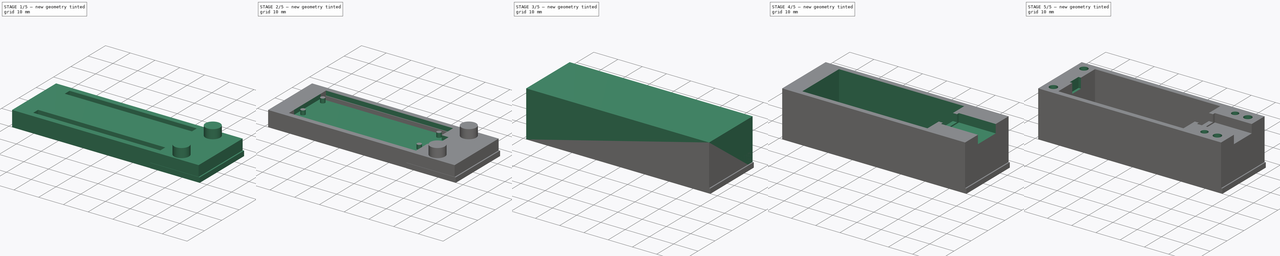
[diagram: build sequence overview — one tinted view per stage of 5, left to right]
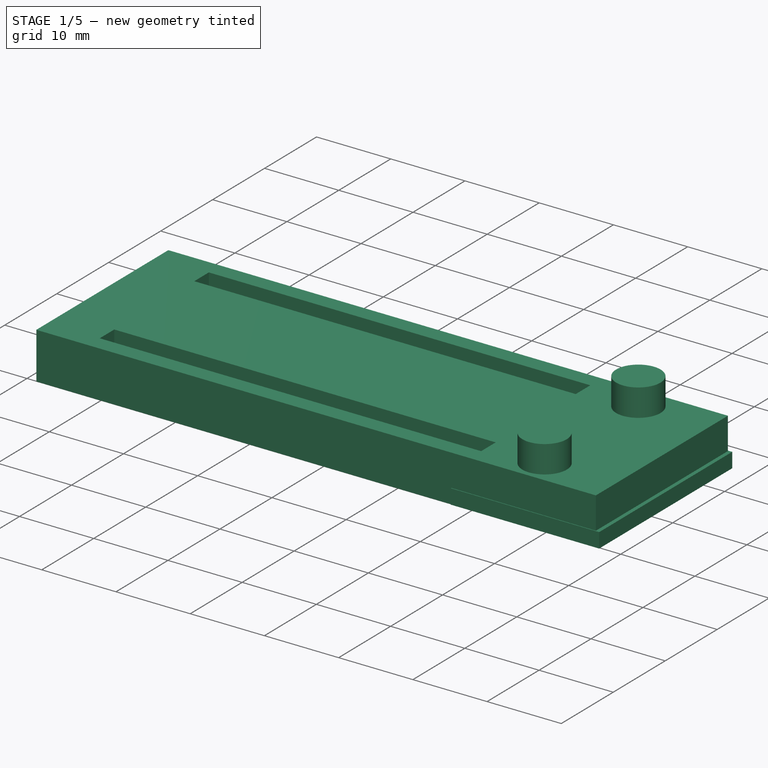
[diagram: stage 1 of 5 — iso view after this stage's code; geometry added in this stage tinted green]
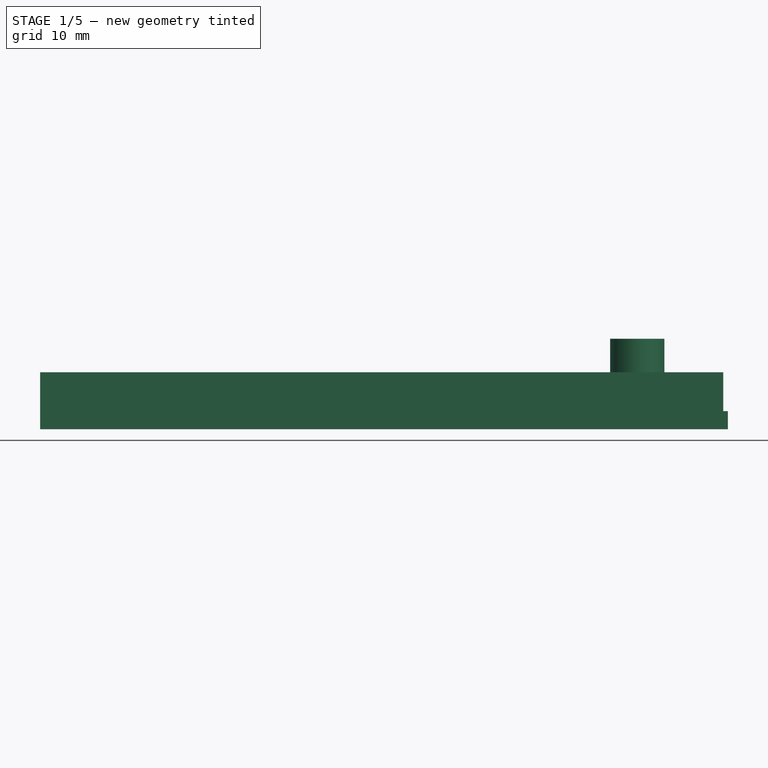
[diagram: stage 1 of 5 — front view after this stage's code; geometry added in this stage tinted green]
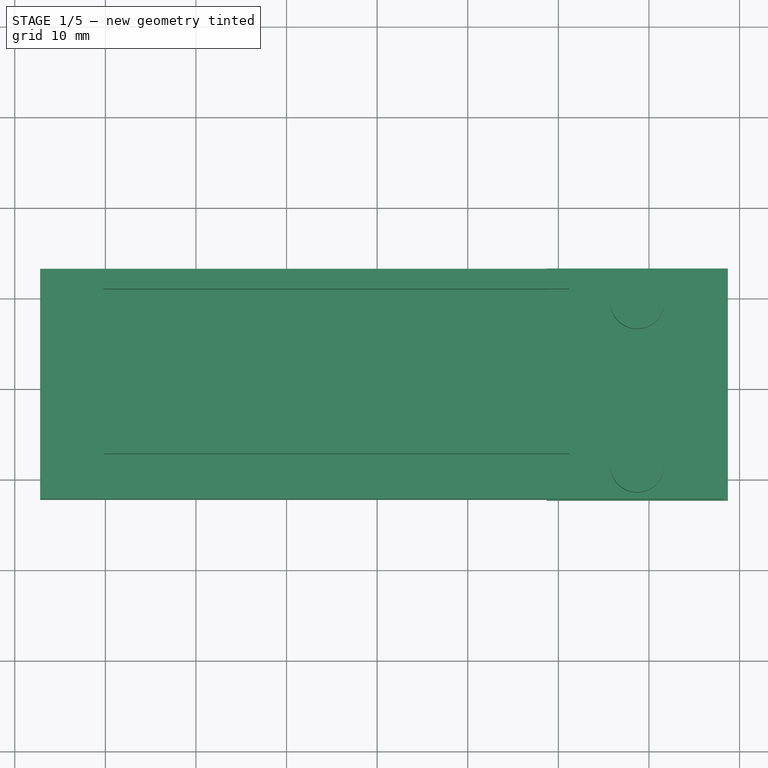
[diagram: stage 1 of 5 — top view after this stage's code; geometry added in this stage tinted green]
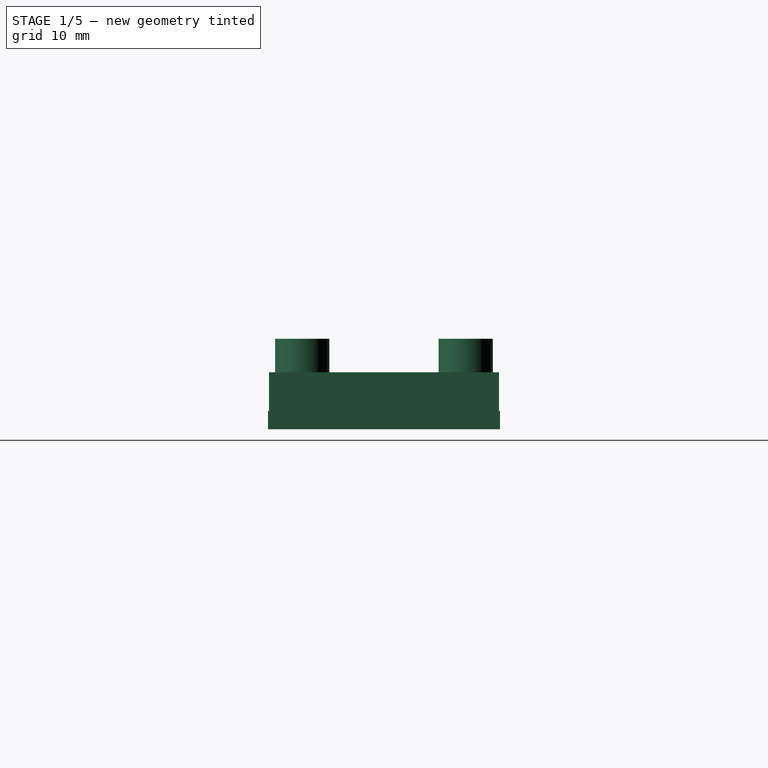
[diagram: stage 1 of 5 — right view after this stage's code; geometry added in this stage tinted green]
FCSTD DOCUMENT  (FreeCAD 0.20R29177 +426 (Git))
Label: picoWHolder
License: All rights reserved
LicenseURL: http://en.wikipedia.org/wiki/All_rights_reserved
objects: Sketcher::SketchObject×18, PartDesign::Pocket×12, PartDesign::Pad×6, PartDesign::Body×3, Spreadsheet::Sheet×2
note: 57 computed .brp shape members not serialized (recipe doc carries the construction recipe); baked Part::Feature solids carry a one-line shape summary decoded from their .brp

FEATURE [Spreadsheet::Sheet] Spreadsheet
  cells = A2=picoWWidth; B2(picoWWidth)==ActualPicowWidth + sizeAdj; C2=sizeAdj; D2(sizeAdj)=0.2; F2=ActualPicowWidth; G2(ActualPicowWidth)=21; A3=picoWHeight; B3(picoWHeight)==ActualPicowHeight + sizeAdj; F3=ActualPicowHeight; G3(ActualPicowHeight)=51; A4=usbMiniWidth; B4(usbMiniWidth)==8 + sizeAdj; D4=0.40 a bit lose; F4=nPicoBoardWidth; G4(nPicoBoardWidth)=51; A5=usbMiniHeight; B5(usbMiniHeight)=3; F5=nPicoBoardHeight; G5(nPicoBoardHeight)=21; A6=usbAttachementWidth; B6(usbAttachementWidth)=10; A7=picoLegToSide; B7(picoLegToSide)=1.61; A9=picoHoleToShortSide; B9(picoHoleToShortSide)=2; A10=picoHoleToLongSide; B10==(21 - 11.4) / 2; A11=picoHoleR; B11(picoHoleR)==(2.1 - 0.3) / 2; A14=holderThickness; B14(holderThickness)=2; A15=bottomPadThickness; B15(bottomPadThickness)==bottomThickness + bottomLegHeight + usbCenterYOverBoard; E15=bottomThickness + bottomLegHeight + 1 + usbCenterYOverBoard; A16=usbCenterYOverBoard; B16(usbCenterYOverBoard)==1 + 0.8; A17=usbcHandlerCoverLen; B17(usbcHandlerCoverLen)=15; A19=picoSideLegWidth; B19(picoSideLegWidth)=2.8; A21=bottomThickness; B21(bottomThickness)=1.5; A22=bottomLegHeight; B22(bottomLegHeight)=3; A24=boardBottomPos; B24(boardBottomPos)==bottomThickness + bottomLegHeight; A26=usbConnectorLen; B26(usbConnectorLen)=3; A27=usbBigConnectorStart; B27(usbBigConnectorStart)=2; A28=usbBigConnetctorWidth; B28(usbBigConnetctorWidth)=10.5; A30=usbBigToSide; B30(usbBigToSide)==(nPicoBoardHeight - usbBigConnetctorWidth) / 2; A32=m3ScrewTightR; B32(m3ScrewTightR)=1.4; A35=backRangeLimterWidth; B35(backRangeLimterWidth)=5; A36=backRangeLimiterToCenter; B36(backRangeLimiterToCenter)==(nPicoBoardHeight - backRangeLimterWidth) / 2; A37=rangeLimiterHeight; B37(rangeLimiterHeight)=4; A38=TotalUnitWidth; B38(TotalUnitWidth)==nPicoBoardWidth + holderThickness * 2 + usbcHandlerCoverLen + sizeAdj * 2 + leftSidePad; A39=TotalUnitHeight; B39(TotalUnitHeight)==nPicoBoardHeight + holderThickness * 2 + sizeAdj * 2; A42=usbHandleAdj; B42(usbHandleAdj)=-3; B43=chganged from -3.5 to 3; A45=rangeLimiterAdj; B45(rangeLimiterAdj)=0.1; A46=frontRangeLimiterX; B46(frontRangeLimiterX)=64; A48=screwHoleToSide; B48(screwHoleToSide)==usbBigToSide / 2 - holderThickness / 2 - sizeAdj / 2; A49=screwHoleBetween; B49(screwHoleBetween)==picoWWidth + holderThickness * 2 - (usbBigToSide / 2 - holderThickness / 2 + holderThickness) * 2; A51=rangeLimiterR; B51(rangeLimiterR)=1.5; A53=leftSidePad; B53(leftSidePad)=5; A55=leftSizeExtra; B55(leftSizeExtra)==holderThickness + sizeAdj + 5
FEATURE [Sketcher::SketchObject] Sketch  label="SketchBottom"
  FullyConstrained = true
  MapMode = 5
  Support = -> [XY_Plane]
  expr: Constraints[10] = Spreadsheet.leftSizeExtra
  expr: Constraints[11] = Spreadsheet.holderThickness + Spreadsheet.sizeAdj
  expr: Constraints[8] = Spreadsheet.TotalUnitWidth
  expr: Constraints[9] = Spreadsheet.TotalUnitHeight
  sketch-geometry (4):
    g0: LineSegment StartX=-7.2 StartY=-2.2 StartZ=0 EndX=68.2 EndY=-2.2 EndZ=0
    g1: LineSegment StartX=68.2 StartY=-2.2 StartZ=0 EndX=68.2 EndY=23.2 EndZ=0
    g2: LineSegment StartX=68.2 StartY=23.2 StartZ=0 EndX=-7.2 EndY=23.2 EndZ=0
    g3: LineSegment StartX=-7.2 StartY=23.2 StartZ=0 EndX=-7.2 EndY=-2.2 EndZ=0
  constraints (12):
    c: Coincident(g0,g1)
    c: Coincident(g1,g2)
    c: Coincident(g2,g3)
    c: Coincident(g3,g0)
    c: Horizontal(g0)
    c: Horizontal(g2)
    c: Vertical(g1)
    c: Vertical(g3)
    c: DistanceX(g2,g2) = 75.4
    c: DistanceY(g1,g1) = 25.4
    c: DistanceX(g0,g-1) = 7.2
    c: DistanceY(g0,g-1) = 2.2
FEATURE [PartDesign::Pad] Pad  label="PadBottom"
  Direction = (0,0,1)
  Length = 6.3
  Length2 = 10
  Profile = -> Sketch
  ReferenceAxis = -> Sketch [N_Axis]
  Type = 0
  expr: Length = Spreadsheet.bottomPadThickness
FEATURE [Sketcher::SketchObject] Sketch001
  AttachmentOffset = pos=(0,0,1.5) rot=(0,0,1;0rad)
  FullyConstrained = true
  MapMode = 5
  Placement = pos=(0,0,1.5) rot=(0,0,1;0rad)
  Support = -> [XY_Plane]
  expr: .AttachmentOffset.Base.z = Spreadsheet.bottomThickness
  expr: Constraints[15] = Spreadsheet.nPicoBoardWidth + Spreadsheet.sizeAdj * 2
  expr: Constraints[16] = Spreadsheet.picoSideLegWidth
  expr: Constraints[17] = Spreadsheet.picoSideLegWidth
  expr: Constraints[18] = Spreadsheet.nPicoBoardHeight
  expr: Constraints[21] = Spreadsheet.sizeAdj
  expr: Constraints[23] = Spreadsheet.nPicoBoardWidth + Spreadsheet.sizeAdj * 2
  sketch-geometry (8):
    g0: LineSegment StartX=-0.2 StartY=0 StartZ=0 EndX=51.2 EndY=0 EndZ=0
    g1: LineSegment StartX=51.2 StartY=0 StartZ=0 EndX=51.2 EndY=2.8 EndZ=0
    g2: LineSegment StartX=51.2 StartY=2.8 StartZ=0 EndX=-0.2 EndY=2.8 EndZ=0
    g3: LineSegment StartX=-0.2 StartY=2.8 StartZ=0 EndX=-0.2 EndY=0 EndZ=0
    g4: LineSegment StartX=-0.2 StartY=21 StartZ=0 EndX=51.2 EndY=21 EndZ=0
    g5: LineSegment StartX=51.2 StartY=21 StartZ=0 EndX=51.2 EndY=18.2 EndZ=0
    g6: LineSegment StartX=51.2 StartY=18.2 StartZ=0 EndX=-0.2 EndY=18.2 EndZ=0
    g7: LineSegment StartX=-0.2 StartY=18.2 StartZ=0 EndX=-0.2 EndY=21 EndZ=0
  constraints (24):
    c: Coincident(g0,g1)
    c: Coincident(g1,g2)
    c: Coincident(g2,g3)
    c: Horizontal(g0)
    c: Horizontal(g2)
    c: Vertical(g1)
    c: Vertical(g3)
    c: Coincident(g4,g5)
    c: Coincident(g5,g6)
    c: Coincident(g6,g7)
    c: Coincident(g7,g4)
    c: Horizontal(g4)
    c: Horizontal(g6)
    c: Vertical(g5)
    c: Vertical(g7)
    c: DistanceX(g6,g6) = 51.4
    c: DistanceY(g3,g3) = 2.8
    c: DistanceY(g5,g5) = 2.8
    c: DistanceY(g0,g4) = 21
    c: Coincident(g0,g3)
    c: DistanceX(g2,g6) = 0
    c: DistanceX(g0,g-1) = 0.2
    c: PointOnObject(g0,g-1)
    c: DistanceX(g2,g2) = 51.4
FEATURE [PartDesign::Pocket] Pocket
  BaseFeature = -> Pad
  Direction = (0,0,-1)
  Length = 5
  Length2 = 5
  Profile = -> Sketch001
  ReferenceAxis = -> Sketch001 [N_Axis]
  Reversed = true
  Type = 1
FEATURE [PartDesign::Body] Body
  Group = -> [Sketch,Pad,Sketch001,Pocket,Sketch002,Pocket001,Sketch003,Pad001,Sketch004,Pocket002,Sketch005,Pocket003,Sketch006,Pocket004,Sketch016,Pad003]
  Origin = -> Origin
  Tip = -> Pad003
FEATURE [Sketcher::SketchObject] Sketch018  label="Sketch006Screw002HeadPass001"
  FullyConstrained = true
  MapMode = 5
  Support = -> [XY_Plane002]
  expr: Constraints[0] = Spreadsheet001.usbBigToSide / 2 - Spreadsheet001.holderThickness / 2 - Spreadsheet001.sizeAdj / 2
  expr: Constraints[3] = Spreadsheet001.picoWWidth + Spreadsheet001.holderThickness * 2 - (Spreadsheet001.usbBigToSide / 2 - Spreadsheet001.holderThickness / 2 + Spreadsheet001.holderThickness) * 2
  expr: Constraints[5] = Spreadsheet001.screwHoleX
  expr: Constraints[6] = Spreadsheet001.m3ScrewHeadPassR - Spreadsheet001.wireHolderSizeAdj
  expr: Constraints[7] = Spreadsheet001.m3ScrewHeadPassR - Spreadsheet001.wireHolderSizeAdj
  sketch-geometry (3):
    g0: Circle CenterX=58.71 CenterY=1.475 CenterZ=0 NormalX=0 NormalY=0 NormalZ=1 AngleXU=0 Radius=2.99
    g1: LineSegment StartX=58.71 StartY=1.475 StartZ=0 EndX=58.71 EndY=19.525 EndZ=0
    g2: Circle CenterX=58.71 CenterY=19.525 CenterZ=0 NormalX=0 NormalY=0 NormalZ=1 AngleXU=0 Radius=2.99
  constraints (8):
    c: DistanceY(g-1,g0) = 1.475
    c: Coincident(g1,g0)
    c: Vertical(g1)
    c: DistanceY(g1,g1) = 18.05
    c: Coincident(g2,g1)
    c: DistanceX(g-1,g0) = 58.71
    c: Radius(g2) = 2.99
    c: Radius(g0) = 2.99
FEATURE [Sketcher::SketchObject] Sketch019  label="SketchBottom002"
  FullyConstrained = true
  MapMode = 5
  Support = -> [XY_Plane002]
  expr: Constraints[10] = Spreadsheet001.screwHoleX - Spreadsheet001.wireHolderSize
  expr: Constraints[11] = Spreadsheet001.screwHoleX + Spreadsheet001.wireHolderSize
  expr: Constraints[8] = Spreadsheet001.TotalUnitHeight
  expr: Constraints[9] = Spreadsheet001.holderThickness + Spreadsheet001.sizeAdj
  sketch-geometry (4):
    g0: LineSegment StartX=48.71 StartY=-2.3 StartZ=0 EndX=68.71 EndY=-2.3 EndZ=0
    g1: LineSegment StartX=68.71 StartY=-2.3 StartZ=0 EndX=68.71 EndY=23.3 EndZ=0
    g2: LineSegment StartX=68.71 StartY=23.3 StartZ=0 EndX=48.71 EndY=23.3 EndZ=0
    g3: LineSegment StartX=48.71 StartY=23.3 StartZ=0 EndX=48.71 EndY=-2.3 EndZ=0
  constraints (12):
    c: Coincident(g0,g1)
    c: Coincident(g1,g2)
    c: Coincident(g2,g3)
    c: Coincident(g3,g0)
    c: Horizontal(g0)
    c: Horizontal(g2)
    c: Vertical(g1)
    c: Vertical(g3)
    c: DistanceY(g1,g1) = 25.6
    c: DistanceY(g0,g-1) = 2.3
    c: DistanceX(g-1,g0) = 48.71
    c: DistanceX(g-1,g0) = 68.71
FEATURE [PartDesign::Pad] Pad004
  Direction = (0,0,1)
  Length = 2
  Length2 = 10
  Profile = -> Sketch019
  ReferenceAxis = -> Sketch019 [N_Axis]
  Type = 0
FEATURE [PartDesign::Pad] Pad005
  BaseFeature = -> Pad004
  Direction = (0,0,1)
  Length = 10
  Length2 = 10
  Profile = -> Sketch018
  ReferenceAxis = -> Sketch018 [N_Axis]
  Type = 0
FEATURE [PartDesign::Body] Body002  label="Body002WireHolder"
  Group = -> [Sketch018,Sketch019,Pad004,Pad005]
  Origin = -> Origin002
  Tip = -> Pad005
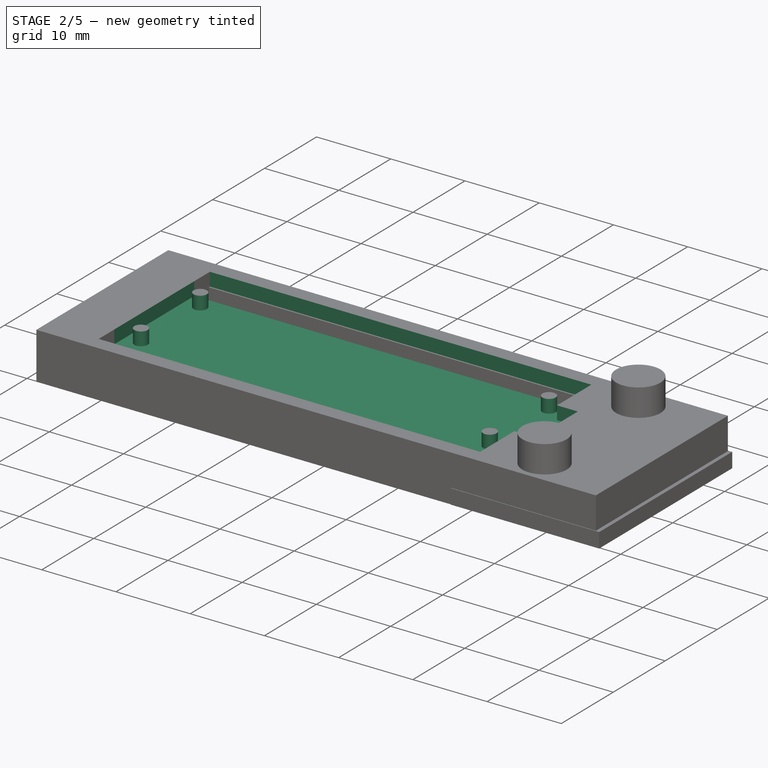
[diagram: stage 2 of 5 — iso view after this stage's code; geometry added in this stage tinted green]
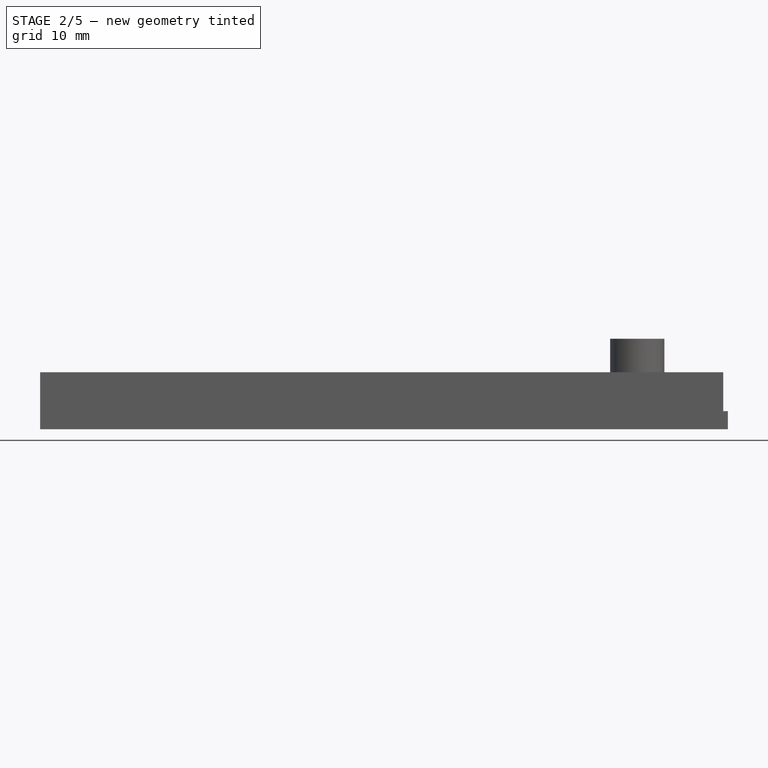
[diagram: stage 2 of 5 — front view after this stage's code; geometry added in this stage tinted green]
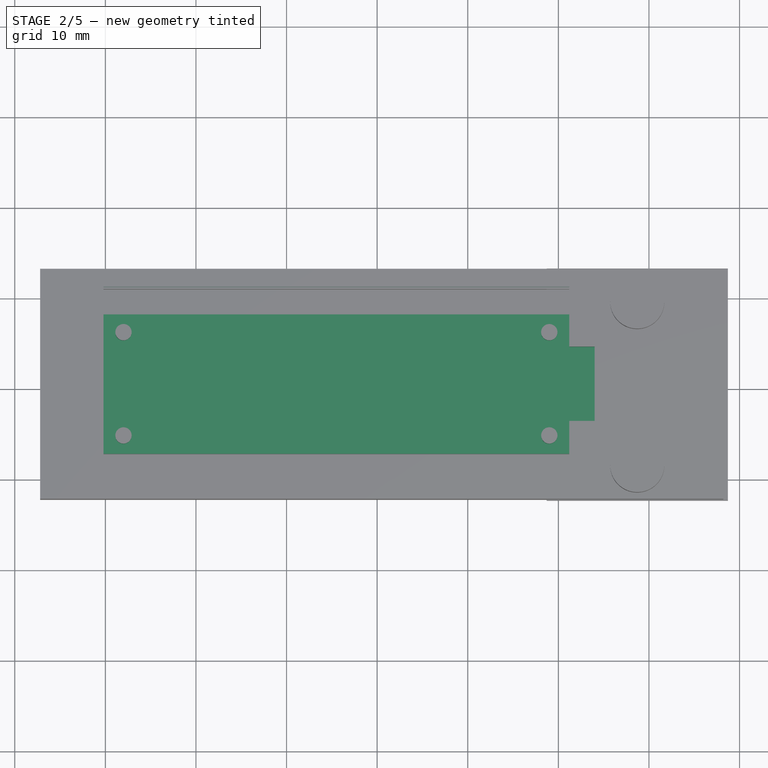
[diagram: stage 2 of 5 — top view after this stage's code; geometry added in this stage tinted green]
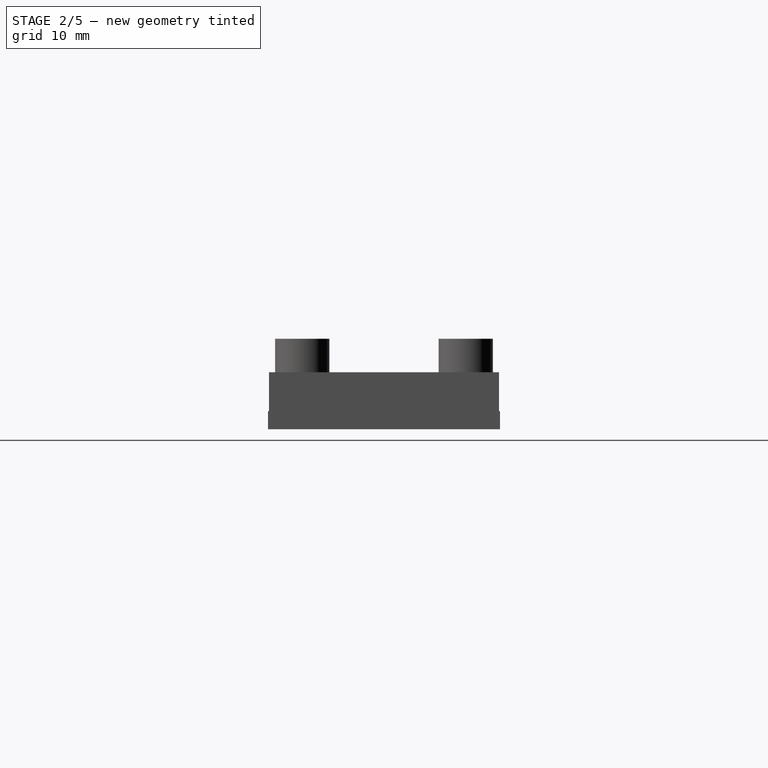
[diagram: stage 2 of 5 — right view after this stage's code; geometry added in this stage tinted green]
FEATURE [Sketcher::SketchObject] Sketch002
  AttachmentOffset = pos=(0,0,4.5) rot=(0,0,1;0rad)
  FullyConstrained = true
  MapMode = 5
  Placement = pos=(0,0,4.5) rot=(0,0,1;0rad)
  Support = -> [XY_Plane]
  expr: .AttachmentOffset.Base.z = Spreadsheet.boardBottomPos
  expr: Constraints[10] = Spreadsheet.sizeAdj
  expr: Constraints[11] = Spreadsheet.nPicoBoardWidth + Spreadsheet.sizeAdj * 2
  expr: Constraints[8] = Spreadsheet.nPicoBoardHeight + Spreadsheet.sizeAdj * 2
  expr: Constraints[9] = Spreadsheet.sizeAdj
  sketch-geometry (4):
    g0: LineSegment StartX=-0.2 StartY=-0.2 StartZ=0 EndX=51.2 EndY=-0.2 EndZ=0
    g1: LineSegment StartX=51.2 StartY=-0.2 StartZ=0 EndX=51.2 EndY=21.2 EndZ=0
    g2: LineSegment StartX=51.2 StartY=21.2 StartZ=0 EndX=-0.2 EndY=21.2 EndZ=0
    g3: LineSegment StartX=-0.2 StartY=21.2 StartZ=0 EndX=-0.2 EndY=-0.2 EndZ=0
  constraints (12):
    c: Coincident(g0,g1)
    c: Coincident(g1,g2)
    c: Coincident(g2,g3)
    c: Coincident(g3,g0)
    c: Horizontal(g0)
    c: Horizontal(g2)
    c: Vertical(g1)
    c: Vertical(g3)
    c: DistanceY(g1,g1) = 21.4
    c: DistanceY(g0,g-1) = 0.2
    c: DistanceX(g0,g-1) = 0.2
    c: DistanceX(g2,g2) = 51.4
FEATURE [PartDesign::Pocket] Pocket001
  BaseFeature = -> Pocket
  Direction = (0,0,-1)
  Length = 5
  Length2 = 5
  Profile = -> Sketch002
  ReferenceAxis = -> Sketch002 [N_Axis]
  Reversed = true
  Type = 1
FEATURE [Sketcher::SketchObject] Sketch003  label="Sketch003ConnectRods"
  FullyConstrained = true
  MapMode = 5
  Support = -> [XY_Plane]
  expr: Constraints[10] = 51 - 2 * 2
  expr: Constraints[15] = Spreadsheet.picoHoleR
  expr: Constraints[16] = Spreadsheet.picoHoleR
  expr: Constraints[17] = Spreadsheet.picoHoleR
  expr: Constraints[18] = Spreadsheet.picoHoleR
  expr: Constraints[19] = (21 - 11.4) / 2
  expr: Constraints[8] = Spreadsheet.picoHoleToShortSide
  sketch-geometry (8):
    g0: LineSegment StartX=2 StartY=16.2 StartZ=0 EndX=49 EndY=16.2 EndZ=0
    g1: LineSegment StartX=2 StartY=4.8 StartZ=0 EndX=49 EndY=4.8 EndZ=0
    g2: LineSegment StartX=49 StartY=16.2 StartZ=0 EndX=49 EndY=4.8 EndZ=0
    g3: LineSegment StartX=2 StartY=16.2 StartZ=0 EndX=2 EndY=4.8 EndZ=0
    g4: Circle CenterX=2 CenterY=16.2 CenterZ=0 NormalX=0 NormalY=0 NormalZ=1 AngleXU=0 Radius=0.9
    g5: Circle CenterX=2 CenterY=4.8 CenterZ=0 NormalX=0 NormalY=0 NormalZ=1 AngleXU=0 Radius=0.9
    g6: Circle CenterX=49 CenterY=16.2 CenterZ=0 NormalX=0 NormalY=0 NormalZ=1 AngleXU=0 Radius=0.9
    g7: Circle CenterX=49 CenterY=4.8 CenterZ=0 NormalX=0 NormalY=0 NormalZ=1 AngleXU=0 Radius=0.9
  constraints (20):
    c: Horizontal(g0)
    c: Horizontal(g1)
    c: Coincident(g2,g0)
    c: Coincident(g2,g1)
    c: Vertical(g2)
    c: Coincident(g3,g0)
    c: Coincident(g3,g1)
    c: Vertical(g3)
    c: DistanceX(g-1,g1) = 2
    c: DistanceY(g3,g3) = 11.4
    c: DistanceX(g0,g0) = 47
    c: Coincident(g4,g0)
    c: Coincident(g5,g1)
    c: Coincident(g6,g0)
    c: Coincident(g7,g1)
    c: Radius(g4) = 0.9
    c: Radius(g5) = 0.9
    c: Radius(g6) = 0.9
    c: Radius(g7) = 0.9
    c: DistanceY(g-1,g5) = 4.8
FEATURE [PartDesign::Pad] Pad001  label="Pad001Connectrods"
  BaseFeature = -> Pocket001
  Direction = (0,0,1)
  Length = 6.3
  Length2 = 10
  Profile = -> Sketch003
  ReferenceAxis = -> Sketch003 [N_Axis]
  Type = 0
  expr: Length = Spreadsheet.bottomPadThickness
FEATURE [Sketcher::SketchObject] Sketch004  label="Sketch004UsbcConnsmall"
  AttachmentOffset = pos=(0,0,4.5) rot=(0,0,1;0rad)
  FullyConstrained = true
  MapMode = 5
  Placement = pos=(0,0,4.5) rot=(0,0,1;0rad)
  Support = -> [XY_Plane]
  expr: .AttachmentOffset.Base.z = Spreadsheet.boardBottomPos
  expr: Constraints[10] = (Spreadsheet.nPicoBoardHeight - Spreadsheet.usbMiniWidth) / 2
  expr: Constraints[11] = Spreadsheet.usbConnectorLen
  expr: Constraints[8] = Spreadsheet.nPicoBoardWidth
  expr: Constraints[9] = Spreadsheet.usbMiniWidth
  sketch-geometry (4):
    g0: LineSegment StartX=51 StartY=14.6 StartZ=0 EndX=54 EndY=14.6 EndZ=0
    g1: LineSegment StartX=54 StartY=14.6 StartZ=0 EndX=54 EndY=6.4 EndZ=0
    g2: LineSegment StartX=54 StartY=6.4 StartZ=0 EndX=51 EndY=6.4 EndZ=0
    g3: LineSegment StartX=51 StartY=6.4 StartZ=0 EndX=51 EndY=14.6 EndZ=0
  constraints (12):
    c: Coincident(g0,g1)
    c: Coincident(g1,g2)
    c: Coincident(g2,g3)
    c: Coincident(g3,g0)
    c: Horizontal(g0)
    c: Horizontal(g2)
    c: Vertical(g1)
    c: Vertical(g3)
    c: DistanceX(g-1,g2) = 51
    c: DistanceY(g3,g3) = 8.2
    c: DistanceY(g-1,g2) = 6.4
    c: DistanceX(g0,g0) = 3
FEATURE [PartDesign::Pocket] Pocket002  label="Pocket002UsbcConnSmall"
  BaseFeature = -> Pad001
  Direction = (0,0,-1)
  Length = 5
  Length2 = 5
  Profile = -> Sketch004
  ReferenceAxis = -> Sketch004 [N_Axis]
  Reversed = true
  Type = 1
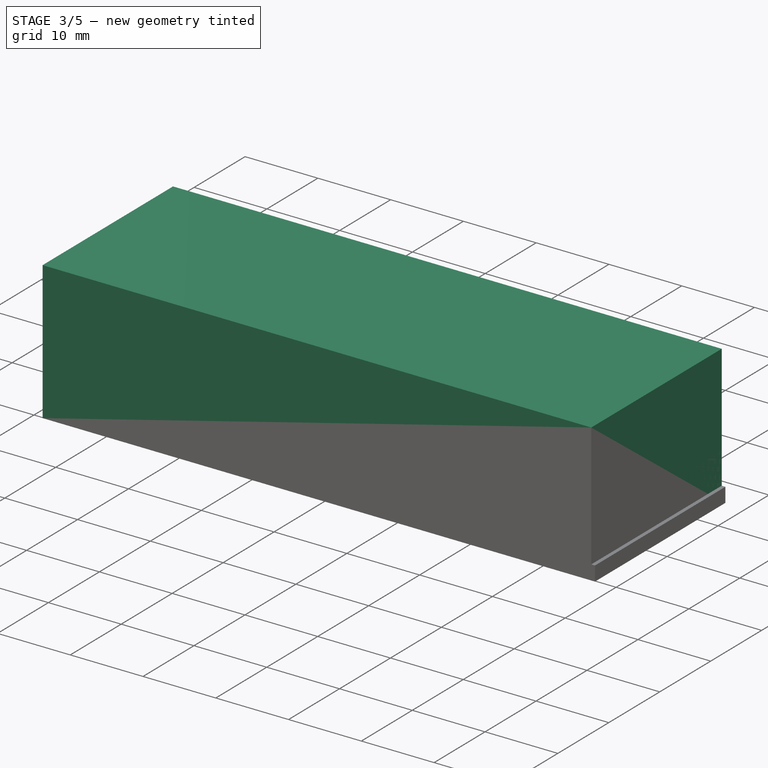
[diagram: stage 3 of 5 — iso view after this stage's code; geometry added in this stage tinted green]
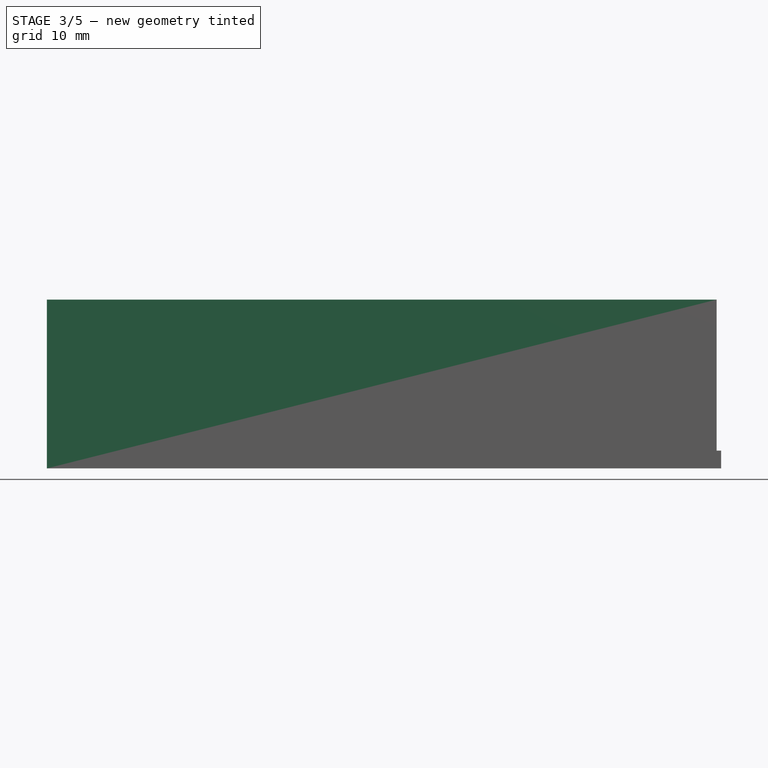
[diagram: stage 3 of 5 — front view after this stage's code; geometry added in this stage tinted green]
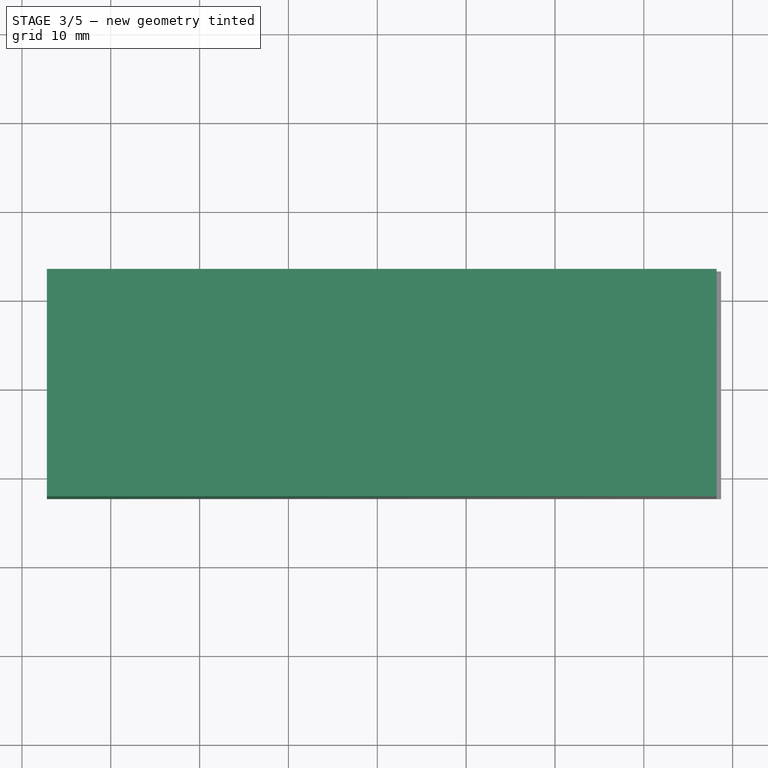
[diagram: stage 3 of 5 — top view after this stage's code; geometry added in this stage tinted green]
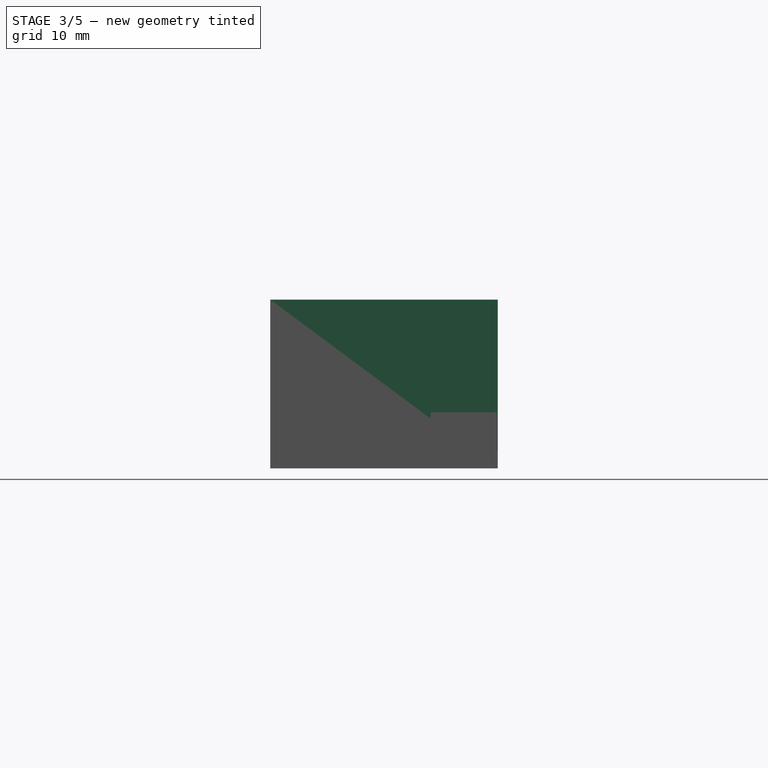
[diagram: stage 3 of 5 — right view after this stage's code; geometry added in this stage tinted green]
FEATURE [Sketcher::SketchObject] Sketch005  label="Sketch005UsbConnPower"
  AttachmentOffset = pos=(0,0,3.5) rot=(0,0,1;0rad)
  FullyConstrained = true
  MapMode = 5
  Placement = pos=(0,0,3.5) rot=(0,0,1;0rad)
  Support = -> [XY_Plane]
  expr: .AttachmentOffset.Base.z = Spreadsheet.boardBottomPos + 2 + Spreadsheet.usbHandleAdj
  expr: Constraints[10] = Spreadsheet.usbBigToSide
  expr: Constraints[11] = Spreadsheet.TotalUnitWidth - Spreadsheet.sizeAdj - Spreadsheet.holderThickness
  expr: Constraints[8] = Spreadsheet.nPicoBoardWidth + Spreadsheet.usbBigConnectorStart
  expr: Constraints[9] = Spreadsheet.usbBigConnetctorWidth
  sketch-geometry (4):
    g0: LineSegment StartX=53 StartY=15.75 StartZ=0 EndX=73.2 EndY=15.75 EndZ=0
    g1: LineSegment StartX=73.2 StartY=15.75 StartZ=0 EndX=73.2 EndY=5.25 EndZ=0
    g2: LineSegment StartX=73.2 StartY=5.25 StartZ=0 EndX=53 EndY=5.25 EndZ=0
    g3: LineSegment StartX=53 StartY=5.25 StartZ=0 EndX=53 EndY=15.75 EndZ=0
  constraints (12):
    c: Coincident(g0,g1)
    c: Coincident(g1,g2)
    c: Coincident(g2,g3)
    c: Coincident(g3,g0)
    c: Horizontal(g0)
    c: Horizontal(g2)
    c: Vertical(g1)
    c: Vertical(g3)
    c: DistanceX(g-1,g2) = 53
    c: DistanceY(g3,g3) = 10.5
    c: DistanceY(g-1,g2) = 5.25
    c: DistanceX(g-1,g0) = 73.2
FEATURE [PartDesign::Pocket] Pocket003  label="Pocket003UsbConnPower"
  BaseFeature = -> Pocket002
  Direction = (0,0,-1)
  Length = 5
  Length2 = 5
  Profile = -> Sketch005
  ReferenceAxis = -> Sketch005 [N_Axis]
  Reversed = true
  Type = 0
FEATURE [Sketcher::SketchObject] Sketch006  label="Sketch006Screw"
  FullyConstrained = true
  MapMode = 5
  Support = -> [XY_Plane]
  expr: Constraints[0] = Spreadsheet.screwHoleToSide
  expr: Constraints[1] = Spreadsheet.m3ScrewTightR
  expr: Constraints[4] = Spreadsheet.screwHoleBetween
  expr: Constraints[6] = Spreadsheet.m3ScrewTightR
  expr: Constraints[7] = Spreadsheet001.screwHoleX
  sketch-geometry (3):
    g0: Circle CenterX=58.71 CenterY=1.525 CenterZ=0 NormalX=0 NormalY=0 NormalZ=1 AngleXU=0 Radius=1.4
    g1: LineSegment StartX=58.71 StartY=1.525 StartZ=0 EndX=58.71 EndY=19.475 EndZ=0
    g2: Circle CenterX=58.71 CenterY=19.475 CenterZ=0 NormalX=0 NormalY=0 NormalZ=1 AngleXU=0 Radius=1.4
  constraints (8):
    c: DistanceY(g-1,g0) = 1.525
    c: Radius(g0) = 1.4
    c: Coincident(g1,g0)
    c: Vertical(g1)
    c: DistanceY(g1,g1) = 17.95
    c: Coincident(g2,g1)
    c: Radius(g2) = 1.4
    c: DistanceX(g-1,g0) = 58.71
FEATURE [PartDesign::Pocket] Pocket004  label="Pocket004Screw"
  BaseFeature = -> Pocket003
  Direction = (0,0,-1)
  Length = 5
  Length2 = 5
  Midplane = true
  Profile = -> Sketch006
  ReferenceAxis = -> Sketch006 [N_Axis]
  Type = 1
FEATURE [Sketcher::SketchObject] Sketch007  label="SketchBottom001"
  FullyConstrained = true
  MapMode = 5
  Support = -> [XY_Plane001]
  expr: Constraints[10] = Spreadsheet.leftSizeExtra
  expr: Constraints[11] = Spreadsheet001.holderThickness + Spreadsheet001.sizeAdj
  expr: Constraints[8] = Spreadsheet001.TotalUnitWidth
  expr: Constraints[9] = Spreadsheet001.TotalUnitHeight
  sketch-geometry (4):
    g0: LineSegment StartX=-7.2 StartY=-2.3 StartZ=0 EndX=68.2 EndY=-2.3 EndZ=0
    g1: LineSegment StartX=68.2 StartY=-2.3 StartZ=0 EndX=68.2 EndY=23.3 EndZ=0
    g2: LineSegment StartX=68.2 StartY=23.3 StartZ=0 EndX=-7.2 EndY=23.3 EndZ=0
    g3: LineSegment StartX=-7.2 StartY=23.3 StartZ=0 EndX=-7.2 EndY=-2.3 EndZ=0
  constraints (12):
    c: Coincident(g0,g1)
    c: Coincident(g1,g2)
    c: Coincident(g2,g3)
    c: Coincident(g3,g0)
    c: Horizontal(g0)
    c: Horizontal(g2)
    c: Vertical(g1)
    c: Vertical(g3)
    c: DistanceX(g2,g2) = 75.4
    c: DistanceY(g1,g1) = 25.6
    c: DistanceX(g0,g-1) = 7.2
    c: DistanceY(g0,g-1) = 2.3
FEATURE [PartDesign::Pad] Pad002  label="PadBottom001"
  Direction = (0,0,1)
  Length = 19
  Length2 = 10
  Profile = -> Sketch007
  ReferenceAxis = -> Sketch007 [N_Axis]
  Type = 0
  expr: Length = Spreadsheet001.totalHeight
FEATURE [PartDesign::Body] Body001  label="Body001TopCover"
  Group = -> [Sketch007,Pad002,Sketch009,Pocket006,Sketch011,Pocket007,Sketch012,Pocket008,Sketch013,Pocket009,Sketch014,Pocket010,Sketch015,Pocket011,Sketch017,Pocket012]
  Origin = -> Origin001
  Tip = -> Pocket012
FEATURE [PartDesign::Pad] Pad003
  BaseFeature = -> Pocket004
  Direction = (0,0,1)
  Length = 4
  Length2 = 10
  Profile = -> Sketch016
  ReferenceAxis = -> Sketch016 [N_Axis]
  Type = 0
  expr: Length = Spreadsheet.rangeLimiterHeight
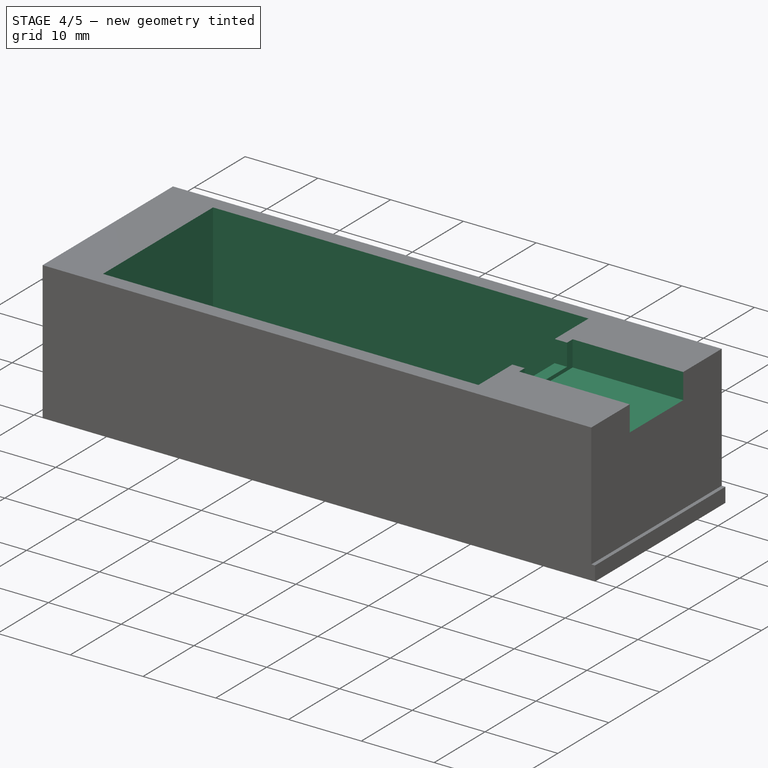
[diagram: stage 4 of 5 — iso view after this stage's code; geometry added in this stage tinted green]
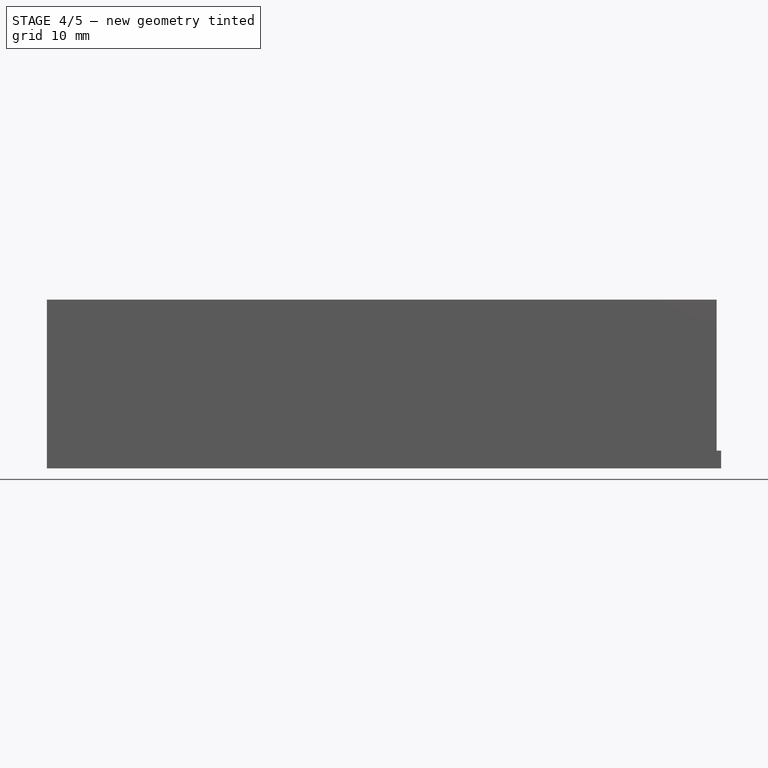
[diagram: stage 4 of 5 — front view after this stage's code; geometry added in this stage tinted green]
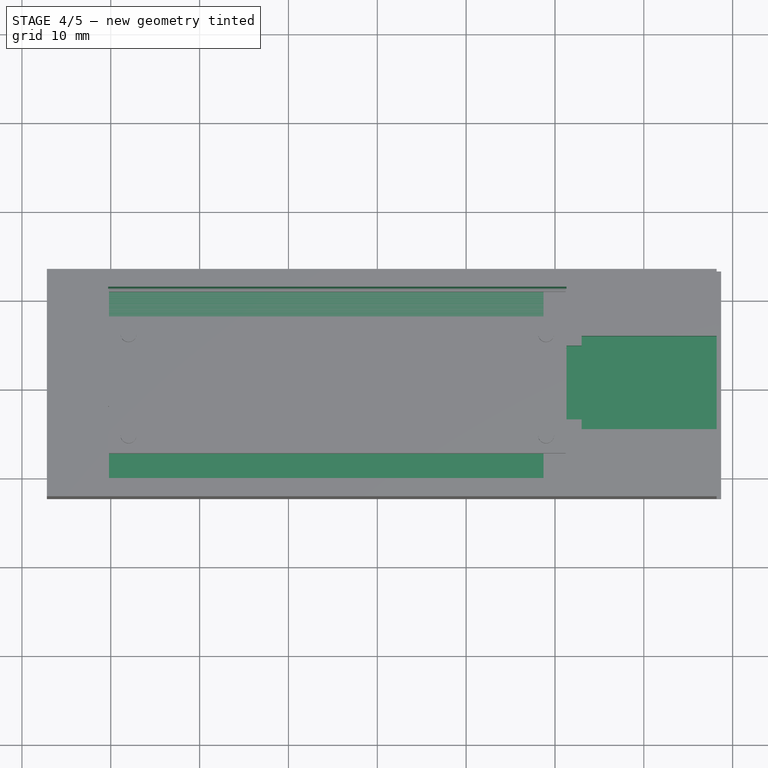
[diagram: stage 4 of 5 — top view after this stage's code; geometry added in this stage tinted green]
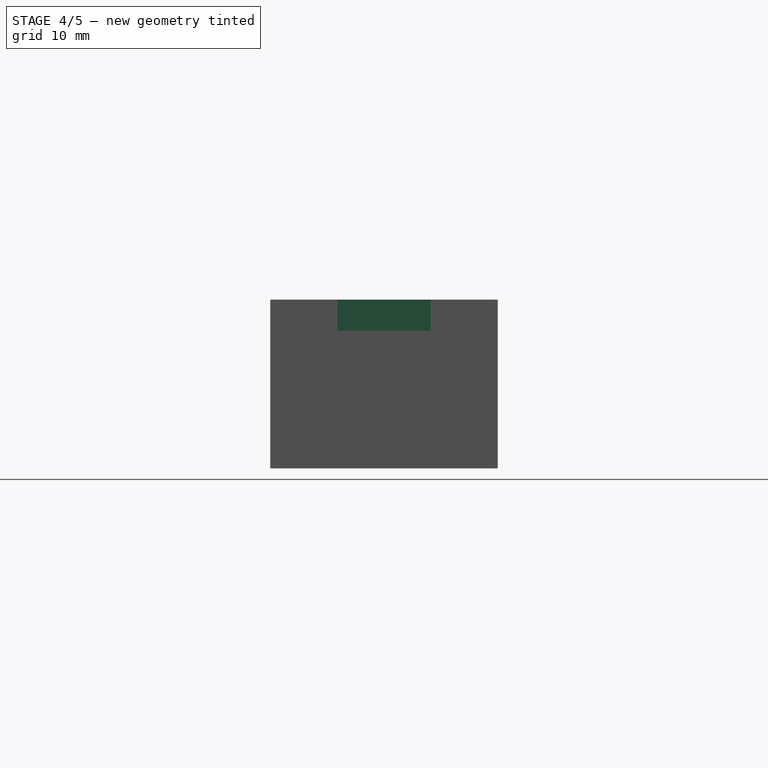
[diagram: stage 4 of 5 — right view after this stage's code; geometry added in this stage tinted green]
FEATURE [Sketcher::SketchObject] Sketch009
  AttachmentOffset = pos=(0,0,1.5) rot=(0,0,1;0rad)
  FullyConstrained = true
  MapMode = 5
  Placement = pos=(0,0,1.5) rot=(0,0,1;0rad)
  Support = -> [XY_Plane001]
  expr: .AttachmentOffset.Base.z = Spreadsheet001.bottomThickness
  expr: Constraints[10] = Spreadsheet001.sizeAdj
  expr: Constraints[11] = Spreadsheet001.nPicoBoardWidth + Spreadsheet001.sizeAdj * 2
  expr: Constraints[8] = Spreadsheet001.nPicoBoardHeight + Spreadsheet001.sizeAdj * 2
  expr: Constraints[9] = Spreadsheet001.sizeAdj
  sketch-geometry (4):
    g0: LineSegment StartX=-0.3 StartY=-0.3 StartZ=0 EndX=51.3 EndY=-0.3 EndZ=0
    g1: LineSegment StartX=51.3 StartY=-0.3 StartZ=0 EndX=51.3 EndY=21.3 EndZ=0
    g2: LineSegment StartX=51.3 StartY=21.3 StartZ=0 EndX=-0.3 EndY=21.3 EndZ=0
    g3: LineSegment StartX=-0.3 StartY=21.3 StartZ=0 EndX=-0.3 EndY=-0.3 EndZ=0
  constraints (12):
    c: Coincident(g0,g1)
    c: Coincident(g1,g2)
    c: Coincident(g2,g3)
    c: Coincident(g3,g0)
    c: Horizontal(g0)
    c: Horizontal(g2)
    c: Vertical(g1)
    c: Vertical(g3)
    c: DistanceY(g1,g1) = 21.6
    c: DistanceY(g0,g-1) = 0.3
    c: DistanceX(g0,g-1) = 0.3
    c: DistanceX(g2,g2) = 51.6
FEATURE [PartDesign::Pocket] Pocket006
  BaseFeature = -> Pad002
  Direction = (0,0,-1)
  Length = 5
  Length2 = 5
  Profile = -> Sketch009
  ReferenceAxis = -> Sketch009 [N_Axis]
  Reversed = true
  Type = 1
FEATURE [Sketcher::SketchObject] Sketch011  label="Sketch004UsbcConnsmall001"
  AttachmentOffset = pos=(0,0,16) rot=(0,0,1;0rad)
  FullyConstrained = true
  MapMode = 5
  Placement = pos=(0,0,16) rot=(0,0,1;0rad)
  Support = -> [XY_Plane001]
  expr: .AttachmentOffset.Base.z = Spreadsheet001.totalHeight - Spreadsheet001.topCoverUsbTinySpacing
  expr: Constraints[10] = (Spreadsheet001.nPicoBoardHeight - Spreadsheet001.usbMiniWidth) / 2
  expr: Constraints[11] = Spreadsheet001.usbConnectorLen
  expr: Constraints[8] = Spreadsheet001.nPicoBoardWidth
  expr: Constraints[9] = Spreadsheet001.usbMiniWidth
  sketch-geometry (4):
    g0: LineSegment StartX=51 StartY=14.65 StartZ=0 EndX=54 EndY=14.65 EndZ=0
    g1: LineSegment StartX=54 StartY=14.65 StartZ=0 EndX=54 EndY=6.35 EndZ=0
    g2: LineSegment StartX=54 StartY=6.35 StartZ=0 EndX=51 EndY=6.35 EndZ=0
    g3: LineSegment StartX=51 StartY=6.35 StartZ=0 EndX=51 EndY=14.65 EndZ=0
  constraints (12):
    c: Coincident(g0,g1)
    c: Coincident(g1,g2)
    c: Coincident(g2,g3)
    c: Coincident(g3,g0)
    c: Horizontal(g0)
    c: Horizontal(g2)
    c: Vertical(g1)
    c: Vertical(g3)
    c: DistanceX(g-1,g2) = 51
    c: DistanceY(g3,g3) = 8.3
    c: DistanceY(g-1,g2) = 6.35
    c: DistanceX(g0,g0) = 3
FEATURE [PartDesign::Pocket] Pocket007  label="Pocket002UsbcConnSmall001"
  BaseFeature = -> Pocket006
  Direction = (0,0,-1)
  Length = 5
  Length2 = 5
  Profile = -> Sketch011
  ReferenceAxis = -> Sketch011 [N_Axis]
  Reversed = true
  Type = 1
FEATURE [Sketcher::SketchObject] Sketch012  label="Sketch005UsbConnPower001"
  AttachmentOffset = pos=(0,0,15.5) rot=(0,0,1;0rad)
  FullyConstrained = true
  MapMode = 5
  Placement = pos=(0,0,15.5) rot=(0,0,1;0rad)
  Support = -> [XY_Plane001]
  expr: .AttachmentOffset.Base.z = Spreadsheet001.totalHeight - Spreadsheet001.topCoverBigUsbSpacing
  expr: Constraints[10] = Spreadsheet001.usbBigToSide
  expr: Constraints[11] = Spreadsheet001.TotalUnitWidth - Spreadsheet001.sizeAdj - Spreadsheet001.holderThickness
  expr: Constraints[8] = Spreadsheet001.nPicoBoardWidth + Spreadsheet001.usbBigConnectorStart
  expr: Constraints[9] = Spreadsheet001.usbBigConnetctorWidth
  sketch-geometry (4):
    g0: LineSegment StartX=53 StartY=15.75 StartZ=0 EndX=73.1 EndY=15.75 EndZ=0
    g1: LineSegment StartX=73.1 StartY=15.75 StartZ=0 EndX=73.1 EndY=5.25 EndZ=0
    g2: LineSegment StartX=73.1 StartY=5.25 StartZ=0 EndX=53 EndY=5.25 EndZ=0
    g3: LineSegment StartX=53 StartY=5.25 StartZ=0 EndX=53 EndY=15.75 EndZ=0
  constraints (12):
    c: Coincident(g0,g1)
    c: Coincident(g1,g2)
    c: Coincident(g2,g3)
    c: Coincident(g3,g0)
    c: Horizontal(g0)
    c: Horizontal(g2)
    c: Vertical(g1)
    c: Vertical(g3)
    c: DistanceX(g-1,g2) = 53
    c: DistanceY(g3,g3) = 10.5
    c: DistanceY(g-1,g2) = 5.25
    c: DistanceX(g-1,g0) = 73.1
FEATURE [PartDesign::Pocket] Pocket008  label="Pocket003UsbConnPower001"
  BaseFeature = -> Pocket007
  Direction = (0,0,-1)
  Length = 5
  Length2 = 5
  Profile = -> Sketch012
  ReferenceAxis = -> Sketch012 [N_Axis]
  Reversed = true
  Type = 0
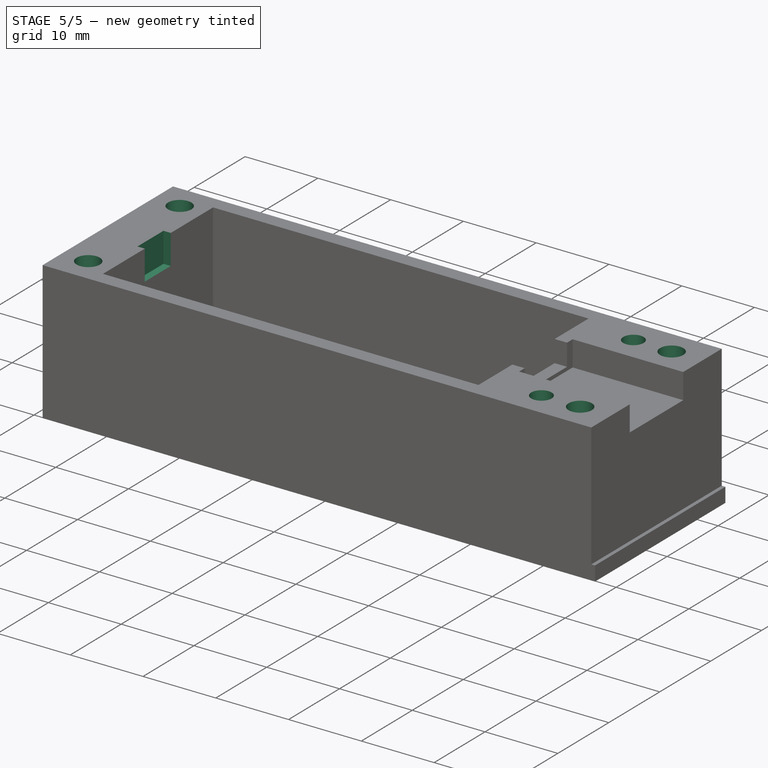
[diagram: stage 5 of 5 — iso view after this stage's code; geometry added in this stage tinted green]
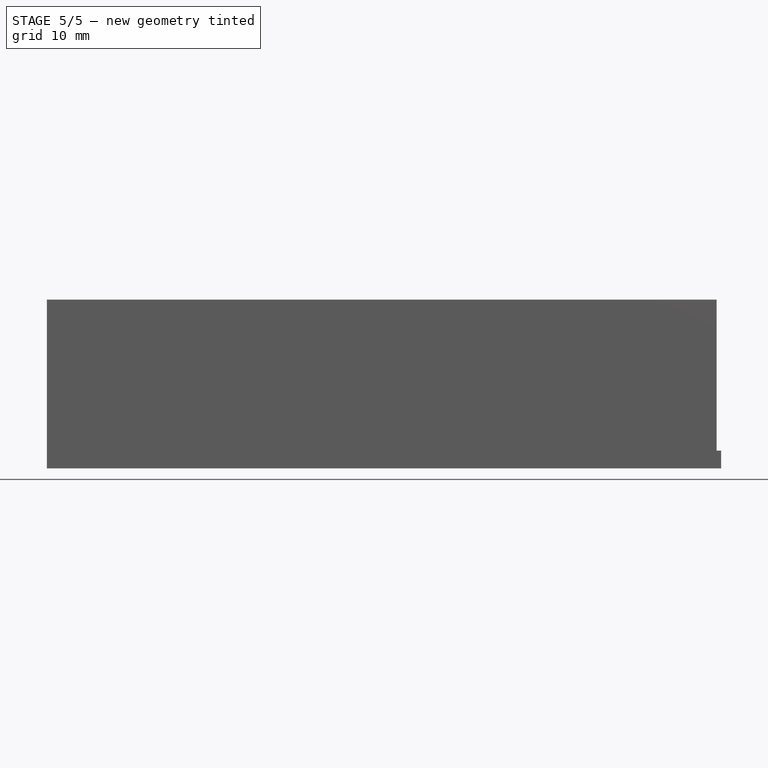
[diagram: stage 5 of 5 — front view after this stage's code; geometry added in this stage tinted green]
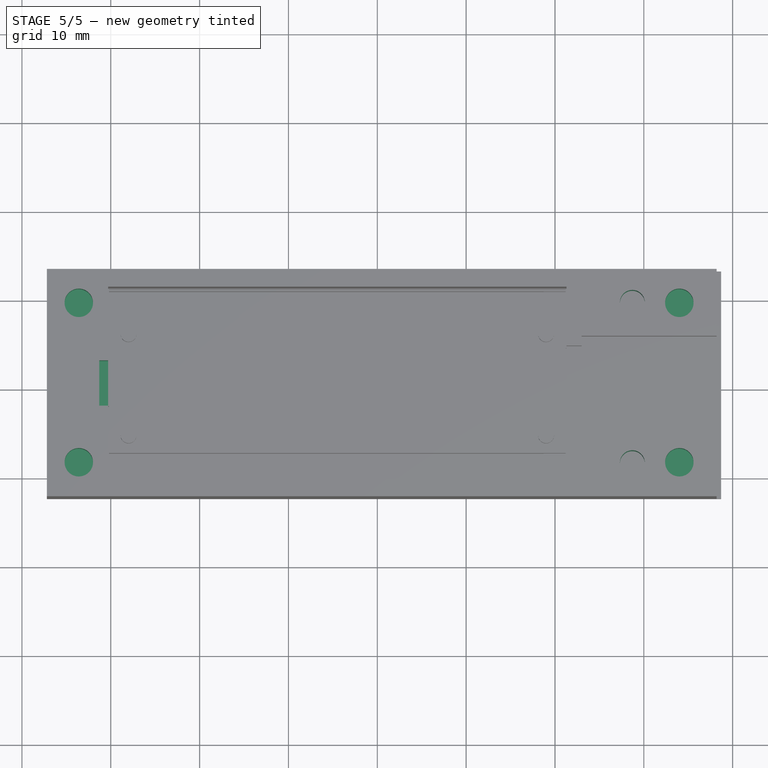
[diagram: stage 5 of 5 — top view after this stage's code; geometry added in this stage tinted green]
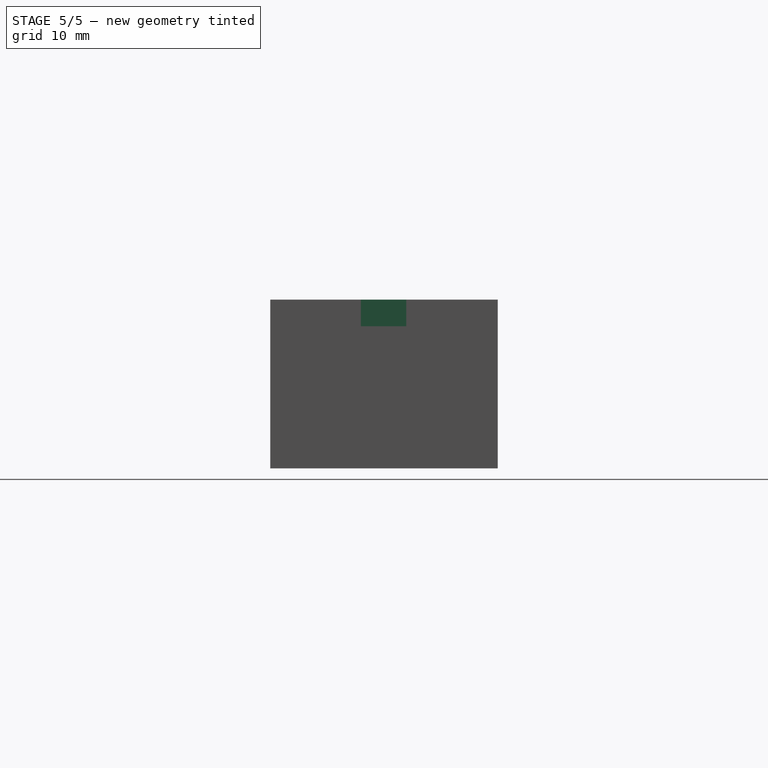
[diagram: stage 5 of 5 — right view after this stage's code; geometry added in this stage tinted green]
FEATURE [Sketcher::SketchObject] Sketch013  label="Sketch006Screw001"
  FullyConstrained = true
  MapMode = 5
  Support = -> [XY_Plane001]
  expr: Constraints[0] = Spreadsheet001.usbBigToSide / 2 - Spreadsheet001.holderThickness / 2 - Spreadsheet001.sizeAdj / 2
  expr: Constraints[1] = Spreadsheet001.m3ScrewTightR
  expr: Constraints[4] = Spreadsheet001.picoWWidth + Spreadsheet001.holderThickness * 2 - (Spreadsheet001.usbBigToSide / 2 - Spreadsheet001.holderThickness / 2 + Spreadsheet001.holderThickness) * 2
  expr: Constraints[6] = Spreadsheet001.screwHoleX
  expr: Constraints[7] = Spreadsheet001.m3ScrewTightR
  sketch-geometry (3):
    g0: Circle CenterX=58.71 CenterY=1.475 CenterZ=0 NormalX=0 NormalY=0 NormalZ=1 AngleXU=0 Radius=1.4
    g1: LineSegment StartX=58.71 StartY=1.475 StartZ=0 EndX=58.71 EndY=19.525 EndZ=0
    g2: Circle CenterX=58.71 CenterY=19.525 CenterZ=0 NormalX=0 NormalY=0 NormalZ=1 AngleXU=0 Radius=1.4
  constraints (8):
    c: DistanceY(g-1,g0) = 1.475
    c: Radius(g0) = 1.4
    c: Coincident(g1,g0)
    c: Vertical(g1)
    c: DistanceY(g1,g1) = 18.05
    c: Coincident(g2,g1)
    c: DistanceX(g-1,g0) = 58.71
    c: Radius(g2) = 1.4
FEATURE [PartDesign::Pocket] Pocket009  label="Pocket004Screw001"
  BaseFeature = -> Pocket008
  Direction = (0,0,-1)
  Length = 5
  Length2 = 5
  Midplane = true
  Profile = -> Sketch013
  ReferenceAxis = -> Sketch013 [N_Axis]
  Type = 1
FEATURE [Spreadsheet::Sheet] Spreadsheet001
  cells = A2=picoWWidth; B2(picoWWidth)==ActualPicowWidth + sizeAdj; C2=sizeAdj; D2(sizeAdj)=0.3; F2=ActualPicowWidth; G2(ActualPicowWidth)=21; A3=picoWHeight; B3(picoWHeight)==ActualPicowHeight + sizeAdj; F3=ActualPicowHeight; G3(ActualPicowHeight)=51; A4=usbMiniWidth; B4(usbMiniWidth)==8 + sizeAdj; D4=0.40 a bit lose; F4=nPicoBoardWidth; G4(nPicoBoardWidth)=51; A5=usbMiniHeight; B5(usbMiniHeight)=3; F5=nPicoBoardHeight; G5(nPicoBoardHeight)=21; A6=usbAttachementWidth; B6(usbAttachementWidth)=10; A7=picoLegToSide; B7(picoLegToSide)=1.61; A9=picoHoleToShortSide; B9(picoHoleToShortSide)=2; A10=picoHoleToLongSide; B10==(21 - 11.4) / 2; A11=picoHoleR; B11(picoHoleR)==(2.1 - 0.3) / 2; A14=holderThickness; B14(holderThickness)=2; A15=totalHeight; B15(totalHeight)==bottomThickness + totalCoverInsideHeight; E15=bottomThickness + bottomLegHeight + 1 + usbCenterYOverBoard; A16=usbCenterYOverBoard; B16(usbCenterYOverBoard)==1 + 0.8; A17=usbcHandlerCoverLen; B17(usbcHandlerCoverLen)=15; A19=picoSideLegWidth; B19(picoSideLegWidth)=2.8; A21=bottomThickness; B21(bottomThickness)=1.5; A22=bottomLegHeight; B22(bottomLegHeight)=3; A24=boardBottomPos; B24(boardBottomPos)==bottomThickness + bottomLegHeight; A26=usbConnectorLen; B26(usbConnectorLen)=3; A27=usbBigConnectorStart; B27(usbBigConnectorStart)=2; A28=usbBigConnetctorWidth; B28(usbBigConnetctorWidth)=10.5; A30=usbBigToSide; B30(usbBigToSide)==(nPicoBoardHeight - usbBigConnetctorWidth) / 2; A32=m3ScrewTightR; B32(m3ScrewTightR)=1.4; A38=TotalUnitWidth; B38(TotalUnitWidth)==Spreadsheet.TotalUnitWidth; A39=TotalUnitHeight; B39(TotalUnitHeight)==nPicoBoardHeight + holderThickness * 2 + sizeAdj * 2; A42=usbHandleAdj; B42(usbHandleAdj)=-3; B43=chganged from -3.5 to 3; A45=totalCoverInsideHeight; B45(totalCoverInsideHeight)=17.5; A46=topCoverUsbTinySpacing; B46(topCoverUsbTinySpacing)=3; A47=topCoverBigUsbSpacing; B47(topCoverBigUsbSpacing)=3.5; C47=4.5 too big, change to 3.5; A48=m3ScrewHeadPassR; B48(m3ScrewHeadPassR)=3; A50=screwHoleX; B50(screwHoleX)=58.71; A55=wireHolderSizeAdj; B55(wireHolderSizeAdj)=0.01; A56=wireHolderSize; B56(wireHolderSize)=10
FEATURE [Sketcher::SketchObject] Sketch014  label="Sketch006Screw002HeadPass"
  FullyConstrained = true
  MapMode = 5
  Support = -> [XY_Plane001]
  expr: Constraints[0] = Spreadsheet001.usbBigToSide / 2 - Spreadsheet001.holderThickness / 2 - Spreadsheet001.sizeAdj / 2
  expr: Constraints[3] = Spreadsheet001.picoWWidth + Spreadsheet001.holderThickness * 2 - (Spreadsheet001.usbBigToSide / 2 - Spreadsheet001.holderThickness / 2 + Spreadsheet001.holderThickness) * 2
  expr: Constraints[5] = Spreadsheet001.screwHoleX
  expr: Constraints[6] = Spreadsheet001.m3ScrewHeadPassR
  expr: Constraints[7] = Spreadsheet001.m3ScrewHeadPassR
  sketch-geometry (3):
    g0: Circle CenterX=58.71 CenterY=1.475 CenterZ=0 NormalX=0 NormalY=0 NormalZ=1 AngleXU=0 Radius=3
    g1: LineSegment StartX=58.71 StartY=1.475 StartZ=0 EndX=58.71 EndY=19.525 EndZ=0
    g2: Circle CenterX=58.71 CenterY=19.525 CenterZ=0 NormalX=0 NormalY=0 NormalZ=1 AngleXU=0 Radius=3
  constraints (8):
    c: DistanceY(g-1,g0) = 1.475
    c: Coincident(g1,g0)
    c: Vertical(g1)
    c: DistanceY(g1,g1) = 18.05
    c: Coincident(g2,g1)
    c: DistanceX(g-1,g0) = 58.71
    c: Radius(g2) = 3
    c: Radius(g0) = 3
FEATURE [PartDesign::Pocket] Pocket010
  BaseFeature = -> Pocket009
  Direction = (0,0,-1)
  Length = 13
  Length2 = 5
  Profile = -> Sketch014
  ReferenceAxis = -> Sketch014 [N_Axis]
  Reversed = true
  Type = 0
  expr: Length = Spreadsheet001.totalHeight - 6
FEATURE [Sketcher::SketchObject] Sketch015
  AttachmentOffset = pos=(0,0,1.5) rot=(0,0,1;0rad)
  FullyConstrained = true
  MapMode = 5
  Placement = pos=(0,0,1.5) rot=(0,0,1;0rad)
  Support = -> [XY_Plane001]
  expr: .AttachmentOffset.Base.z = Spreadsheet.bottomThickness
  expr: Constraints[15] = Spreadsheet.nPicoBoardWidth + Spreadsheet.sizeAdj * 2
  expr: Constraints[16] = Spreadsheet.picoSideLegWidth
  expr: Constraints[17] = Spreadsheet.picoSideLegWidth
  expr: Constraints[18] = Spreadsheet.nPicoBoardHeight
  expr: Constraints[21] = Spreadsheet.sizeAdj
  expr: Constraints[23] = Spreadsheet.nPicoBoardWidth + Spreadsheet.sizeAdj * 2
  sketch-geometry (8):
    g0: LineSegment StartX=-0.2 StartY=0 StartZ=0 EndX=51.2 EndY=0 EndZ=0
    g1: LineSegment StartX=51.2 StartY=0 StartZ=0 EndX=51.2 EndY=2.8 EndZ=0
    g2: LineSegment StartX=51.2 StartY=2.8 StartZ=0 EndX=-0.2 EndY=2.8 EndZ=0
    g3: LineSegment StartX=-0.2 StartY=2.8 StartZ=0 EndX=-0.2 EndY=0 EndZ=0
    g4: LineSegment StartX=-0.2 StartY=21 StartZ=0 EndX=51.2 EndY=21 EndZ=0
    g5: LineSegment StartX=51.2 StartY=21 StartZ=0 EndX=51.2 EndY=18.2 EndZ=0
    g6: LineSegment StartX=51.2 StartY=18.2 StartZ=0 EndX=-0.2 EndY=18.2 EndZ=0
    g7: LineSegment StartX=-0.2 StartY=18.2 StartZ=0 EndX=-0.2 EndY=21 EndZ=0
  constraints (24):
    c: Coincident(g0,g1)
    c: Coincident(g1,g2)
    c: Coincident(g2,g3)
    c: Horizontal(g0)
    c: Horizontal(g2)
    c: Vertical(g1)
    c: Vertical(g3)
    c: Coincident(g4,g5)
    c: Coincident(g5,g6)
    c: Coincident(g6,g7)
    c: Coincident(g7,g4)
    c: Horizontal(g4)
    c: Horizontal(g6)
    c: Vertical(g5)
    c: Vertical(g7)
    c: DistanceX(g6,g6) = 51.4
    c: DistanceY(g3,g3) = 2.8
    c: DistanceY(g5,g5) = 2.8
    c: DistanceY(g0,g4) = 21
    c: Coincident(g0,g3)
    c: DistanceX(g2,g6) = 0
    c: DistanceX(g0,g-1) = 0.2
    c: PointOnObject(g0,g-1)
    c: DistanceX(g2,g2) = 51.4
FEATURE [PartDesign::Pocket] Pocket011  label="Pocket011TopCover"
  BaseFeature = -> Pocket010
  Direction = (0,0,-1)
  Length = 5
  Length2 = 5
  Profile = -> Sketch015
  ReferenceAxis = -> Sketch015 [N_Axis]
  Type = 0
FEATURE [Sketcher::SketchObject] Sketch016  label="Sketch016RangeLimiter"
  AttachmentOffset = pos=(0,0,6.3) rot=(0,0,1;0rad)
  FullyConstrained = true
  MapMode = 5
  Placement = pos=(0,0,6.3) rot=(0,0,1;0rad)
  Support = -> [XY_Plane]
  expr: .AttachmentOffset.Base.z = Spreadsheet.bottomPadThickness
  expr: Constraints[10] = Spreadsheet.holderThickness / 2
  expr: Constraints[11] = Spreadsheet.backRangeLimiterToCenter
  expr: Constraints[13] = Spreadsheet.frontRangeLimiterX
  expr: Constraints[14] = Spreadsheet.screwHoleBetween
  expr: Constraints[15] = Spreadsheet.screwHoleToSide
  expr: Constraints[19] = Spreadsheet.rangeLimiterR
  expr: Constraints[21] = Spreadsheet.screwHoleToSide
  expr: Constraints[22] = Spreadsheet.screwHoleBetween
  expr: Constraints[23] = Spreadsheet.leftSizeExtra / 2
  expr: Constraints[25] = Spreadsheet.rangeLimiterR
  expr: Constraints[26] = Spreadsheet.rangeLimiterR
  expr: Constraints[8] = Spreadsheet.sizeAdj
  expr: Constraints[9] = Spreadsheet.backRangeLimterWidth
  sketch-geometry (10):
    g0: LineSegment StartX=-0.2 StartY=8 StartZ=0 EndX=-1.2 EndY=8 EndZ=0
    g1: LineSegment StartX=-1.2 StartY=8 StartZ=0 EndX=-1.2 EndY=13 EndZ=0
    g2: LineSegment StartX=-1.2 StartY=13 StartZ=0 EndX=-0.2 EndY=13 EndZ=0
    g3: LineSegment StartX=-0.2 StartY=13 StartZ=0 EndX=-0.2 EndY=8 EndZ=0
    g4: LineSegment StartX=64 StartY=19.475 StartZ=0 EndX=64 EndY=1.525 EndZ=0
    g5: Circle CenterX=64 CenterY=19.475 CenterZ=0 NormalX=0 NormalY=0 NormalZ=1 AngleXU=0 Radius=1.5
    g6: Circle CenterX=64 CenterY=1.525 CenterZ=0 NormalX=0 NormalY=0 NormalZ=1 AngleXU=0 Radius=1.5
    g7: LineSegment StartX=-3.6 StartY=19.475 StartZ=0 EndX=-3.6 EndY=1.525 EndZ=0
    g8: Circle CenterX=-3.6 CenterY=1.525 CenterZ=0 NormalX=0 NormalY=0 NormalZ=1 AngleXU=0 Radius=1.5
    g9: Circle CenterX=-3.6 CenterY=19.475 CenterZ=0 NormalX=0 NormalY=0 NormalZ=1 AngleXU=0 Radius=1.5
  constraints (28):
    c: Coincident(g0,g1)
    c: Coincident(g1,g2)
    c: Coincident(g2,g3)
    c: Coincident(g3,g0)
    c: Horizontal(g0)
    c: Horizontal(g2)
    c: Vertical(g1)
    c: Vertical(g3)
    c: DistanceX(g0,g-1) = 0.2
    c: DistanceY(g1,g1) = 5
    c: DistanceX(g2,g2) = 1
    c: DistanceY(g-1,g0) = 8
    c: Vertical(g4)
    c: DistanceX(g-1,g4) = 64
    c: DistanceY(g4,g4) = 17.95
    c: DistanceY(g-1,g4) = 1.525
    c: Coincident(g5,g4)
    c: Coincident(g6,g4)
    c: Equal(g6,g5)
    c: Radius(g6) = 1.5
    c: Vertical(g7)
    c: DistanceY(g-1,g7) = 1.525
    c: DistanceY(g7,g7) = 17.95
    c: DistanceX(g7,g-1) = 3.6
    c: Coincident(g8,g7)
    c: Radius(g8) = 1.5
    c: Radius(g9) = 1.5
    c: Coincident(g9,g7)
FEATURE [Sketcher::SketchObject] Sketch017  label="Sketch016RangeLimiter001"
  AttachmentOffset = pos=(0,0,19) rot=(0,0,1;0rad)
  FullyConstrained = true
  MapMode = 5
  Placement = pos=(0,0,19) rot=(0,0,1;0rad)
  Support = -> [XY_Plane001]
  expr: .AttachmentOffset.Base.z = Spreadsheet001.totalHeight
  expr: Constraints[10] = Spreadsheet.holderThickness / 2 + Spreadsheet.rangeLimiterAdj
  expr: Constraints[11] = Spreadsheet.backRangeLimiterToCenter - Spreadsheet.rangeLimiterAdj
  expr: Constraints[13] = Spreadsheet.frontRangeLimiterX
  expr: Constraints[14] = Spreadsheet.screwHoleBetween
  expr: Constraints[15] = Spreadsheet.screwHoleToSide
  expr: Constraints[19] = Spreadsheet.rangeLimiterR + Spreadsheet.rangeLimiterAdj
  expr: Constraints[21] = Spreadsheet.screwHoleToSide
  expr: Constraints[22] = Spreadsheet.screwHoleBetween
  expr: Constraints[27] = Spreadsheet.leftSizeExtra / 2
  expr: Constraints[8] = Spreadsheet.sizeAdj
  expr: Constraints[9] = Spreadsheet.backRangeLimterWidth + Spreadsheet.rangeLimiterAdj
  sketch-geometry (10):
    g0: LineSegment StartX=-0.2 StartY=7.9 StartZ=0 EndX=-1.3 EndY=7.9 EndZ=0
    g1: LineSegment StartX=-1.3 StartY=7.9 StartZ=0 EndX=-1.3 EndY=13 EndZ=0
    g2: LineSegment StartX=-1.3 StartY=13 StartZ=0 EndX=-0.2 EndY=13 EndZ=0
    g3: LineSegment StartX=-0.2 StartY=13 StartZ=0 EndX=-0.2 EndY=7.9 EndZ=0
    g4: LineSegment StartX=64 StartY=19.475 StartZ=0 EndX=64 EndY=1.525 EndZ=0
    g5: Circle CenterX=64 CenterY=19.475 CenterZ=0 NormalX=0 NormalY=0 NormalZ=1 AngleXU=0 Radius=1.6
    g6: Circle CenterX=64 CenterY=1.525 CenterZ=0 NormalX=0 NormalY=0 NormalZ=1 AngleXU=0 Radius=1.6
    g7: LineSegment StartX=-3.6 StartY=19.475 StartZ=0 EndX=-3.6 EndY=1.525 EndZ=0
    g8: Circle CenterX=-3.6 CenterY=19.475 CenterZ=0 NormalX=0 NormalY=0 NormalZ=1 AngleXU=0 Radius=1.6
    g9: Circle CenterX=-3.6 CenterY=1.525 CenterZ=0 NormalX=0 NormalY=0 NormalZ=1 AngleXU=0 Radius=1.6
  constraints (28):
    c: Coincident(g0,g1)
    c: Coincident(g1,g2)
    c: Coincident(g2,g3)
    c: Coincident(g3,g0)
    c: Horizontal(g0)
    c: Horizontal(g2)
    c: Vertical(g1)
    c: Vertical(g3)
    c: DistanceX(g0,g-1) = 0.2
    c: DistanceY(g1,g1) = 5.1
    c: DistanceX(g2,g2) = 1.1
    c: DistanceY(g-1,g0) = 7.9
    c: Vertical(g4)
    c: DistanceX(g-1,g4) = 64
    c: DistanceY(g4,g4) = 17.95
    c: DistanceY(g-1,g4) = 1.525
    c: Coincident(g5,g4)
    c: Coincident(g6,g4)
    c: Equal(g6,g5)
    c: Radius(g6) = 1.6
    c: Vertical(g7)
    c: DistanceY(g-1,g7) = 1.525
    c: DistanceY(g7,g7) = 17.95
    c: Coincident(g8,g7)
    c: Coincident(g9,g7)
    c: Equal(g5,g8)
    c: Equal(g9,g6)
    c: DistanceX(g9,g-1) = 3.6
FEATURE [PartDesign::Pocket] Pocket012  label="Pocket012RangeLimiter"
  BaseFeature = -> Pocket011
  Direction = (0,0,-1)
  Length = 4.1
  Length2 = 5
  Profile = -> Sketch017
  ReferenceAxis = -> Sketch017 [N_Axis]
  Type = 0
  expr: Length = Spreadsheet.rangeLimiterHeight + Spreadsheet.rangeLimiterAdj
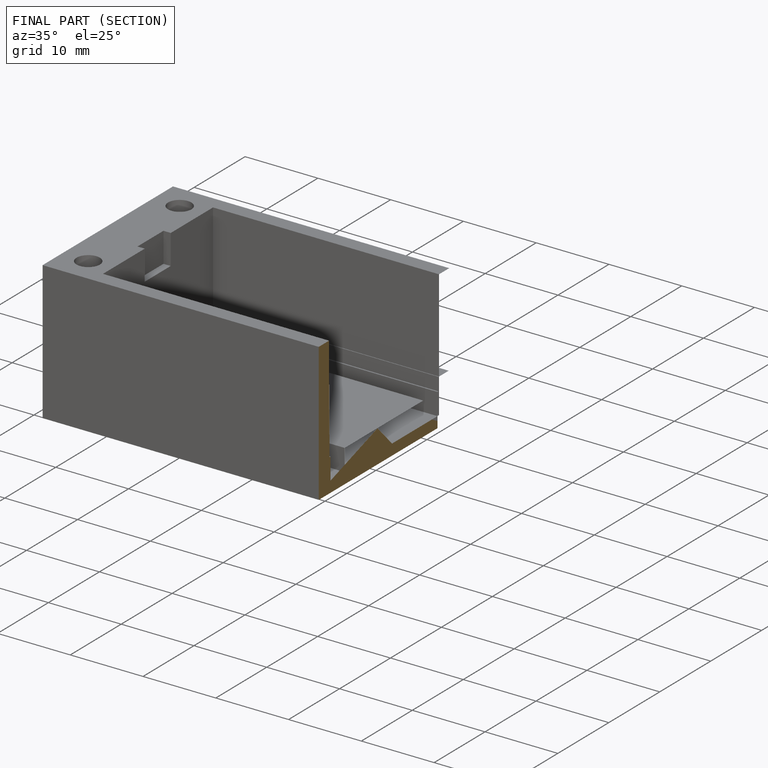
[diagram: finished part — half-section view (interior)]
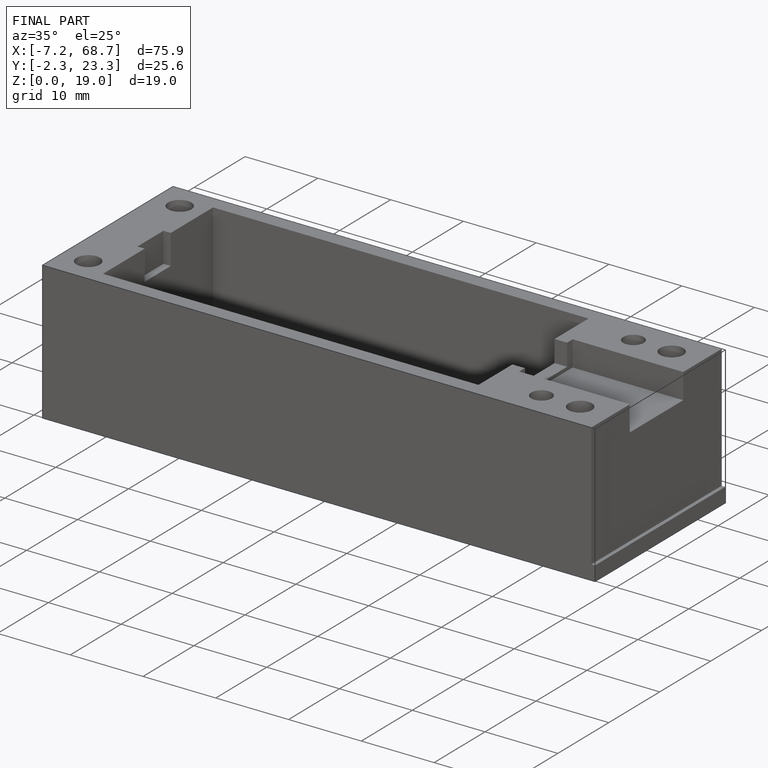
[diagram: finished part — iso view with bounding-box wireframe]
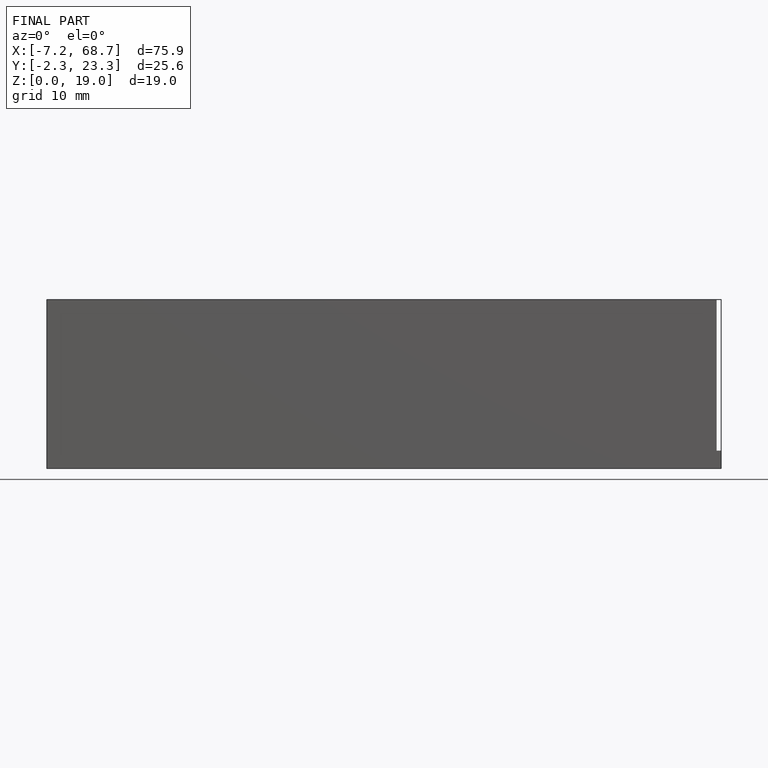
[diagram: finished part — front view with bounding-box wireframe]
